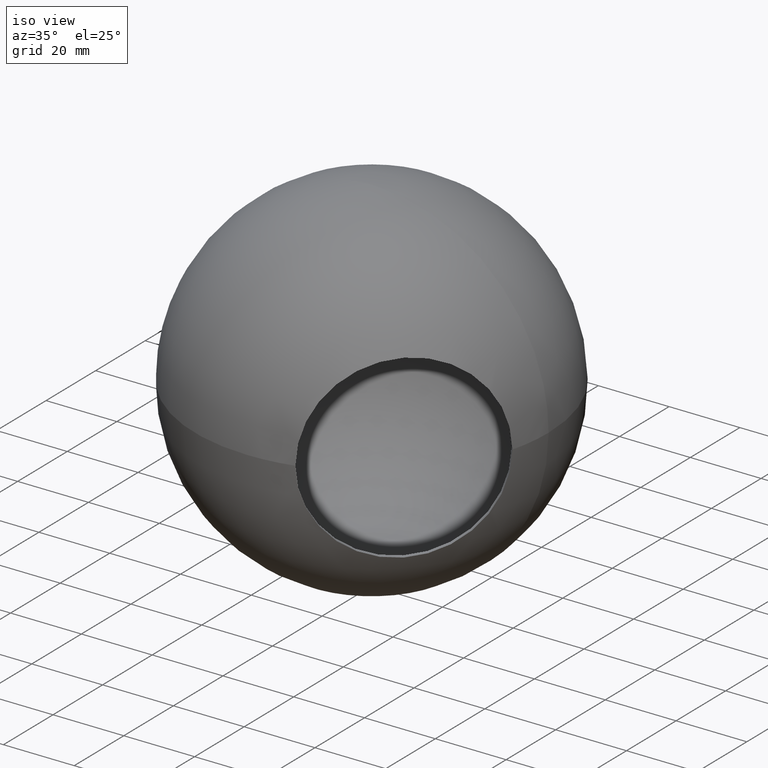
[diagram: clean part render]
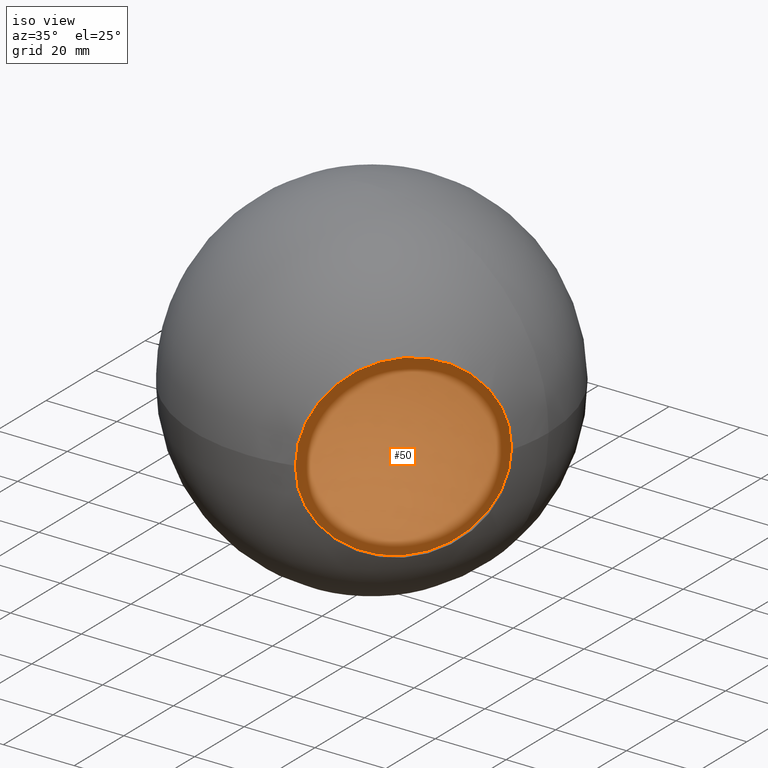
[diagram: same view with one face highlighted and labeled with its STEP entity id]
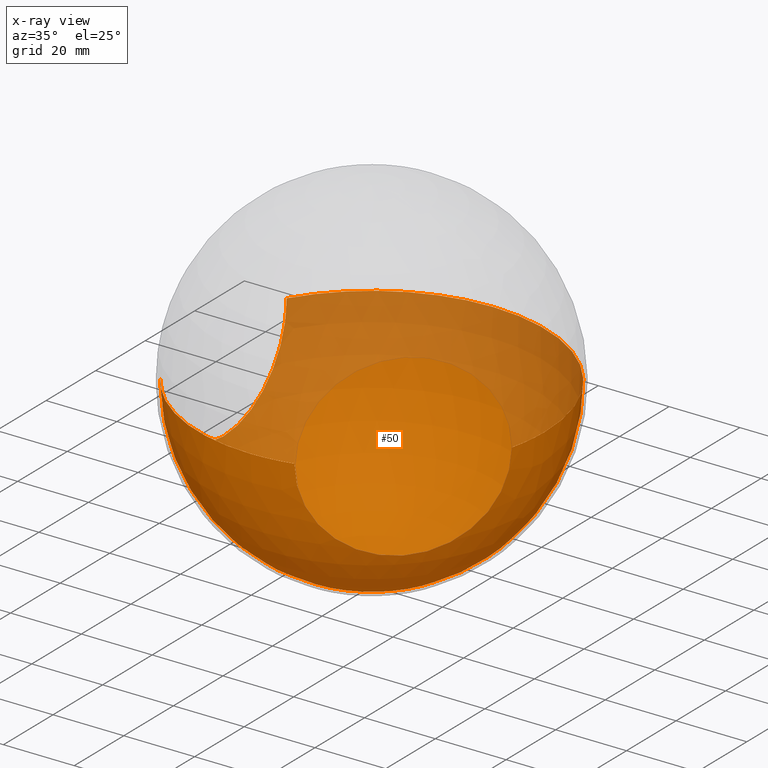
[diagram: x-ray of the same camera — body ghosted, the highlighted face saturated]
A machine part, iso view. The second image highlights one B-rep face of the part: STEP entity #50.
The next image is the same camera in x-ray: the body ghosted, the highlighted face saturated — about 34% of this face is hidden behind the body in this view.
In plain terms, the highlighted spherical surface has radius 49 mm.
Its self-contained STEP definition (entity closure, byte-faithful):
#7 = DIRECTION ( 'NONE',  ( 1.000000000000000000, 0.0000000000000000000, 0.0000000000000000000 ) ) ;
#13 = DIRECTION ( 'NONE',  ( 1.000000000000000000, 0.0000000000000000000, 0.0000000000000000000 ) ) ;
#15 = EDGE_CURVE ( 'NONE', #152, #25, #199, .T. ) ;
#25 = VERTEX_POINT ( 'NONE', #334 ) ;
#29 = EDGE_CURVE ( 'NONE', #114, #152, #51, .T. ) ;
#36 = ORIENTED_EDGE ( 'NONE', *, *, #29, .T. ) ;
#38 = EDGE_CURVE ( 'NONE', #61, #247, #56, .T. ) ;
#47 = AXIS2_PLACEMENT_3D ( 'NONE', #302, #236, #13 ) ;
#48 = CARTESIAN_POINT ( 'NONE',  ( -41.84196458102798700, 0.0000000000000000000, 0.0000000000000000000 ) ) ;
#50 = ADVANCED_FACE ( 'NONE', ( #128 ), #82, .F. ) ;
#51 = CIRCLE ( 'NONE', #316, 49.00000000000000000 ) ;
#56 = CIRCLE ( 'NONE', #291, 25.50000000000000000 ) ;
#59 = DIRECTION ( 'NONE',  ( 0.7071067811865514600, -0.7071067811865435800, -0.0000000000000000000 ) ) ;
#61 = VERTEX_POINT ( 'NONE', #99 ) ;
#62 = EDGE_CURVE ( 'NONE', #25, #332, #337, .T. ) ;
#82 = SPHERICAL_SURFACE ( 'NONE', #235, 49.00000000000000000 ) ;
#92 = CARTESIAN_POINT ( 'NONE',  ( 0.0000000000000000000, 0.0000000000000000000, 0.0000000000000000000 ) ) ;
#93 = DIRECTION ( 'NONE',  ( 1.224646799147353200E-016, 0.0000000000000000000, -1.000000000000000000 ) ) ;
#96 = CARTESIAN_POINT ( 'NONE',  ( -41.84196458102798700, 0.0000000000000000000, 0.0000000000000000000 ) ) ;
#99 = CARTESIAN_POINT ( 'NONE',  ( -41.84196458102798700, 3.122849337825750200E-015, -25.50000000000000000 ) ) ;
#102 = DIRECTION ( 'NONE',  ( 0.0000000000000000000, 0.0000000000000000000, -1.000000000000000000 ) ) ;
#108 = CIRCLE ( 'NONE', #264, 49.00000000000000000 ) ;
#111 = ORIENTED_EDGE ( 'NONE', *, *, #38, .F. ) ;
#114 = VERTEX_POINT ( 'NONE', #134 ) ;
#115 = EDGE_CURVE ( 'NONE', #114, #311, #108, .T. ) ;
#122 = DIRECTION ( 'NONE',  ( 0.0000000000000000000, 0.0000000000000000000, -1.000000000000000000 ) ) ;
#128 = FACE_OUTER_BOUND ( 'NONE', #149, .T. ) ;
#129 = DIRECTION ( 'NONE',  ( 1.000000000000000000, 0.0000000000000000000, 0.0000000000000000000 ) ) ;
#134 = CARTESIAN_POINT ( 'NONE',  ( 3.000384657911015500E-015, -49.00000000000000000, 0.0000000000000000000 ) ) ;
#135 = CARTESIAN_POINT ( 'NONE',  ( 0.0000000000000000000, 0.0000000000000000000, 0.0000000000000000000 ) ) ;
#144 = AXIS2_PLACEMENT_3D ( 'NONE', #96, #7, #122 ) ;
#149 = EDGE_LOOP ( 'NONE', ( #277, #36, #297, #309, #250, #111, #169 ) ) ;
#152 = VERTEX_POINT ( 'NONE', #271 ) ;
#164 = AXIS2_PLACEMENT_3D ( 'NONE', #92, #93, #176 ) ;
#169 = ORIENTED_EDGE ( 'NONE', *, *, #184, .F. ) ;
#176 = DIRECTION ( 'NONE',  ( -1.000000000000000000, 0.0000000000000000000, -1.224646799147353200E-016 ) ) ;
#183 = DIRECTION ( 'NONE',  ( 1.000000000000000000, 0.0000000000000000000, 0.0000000000000000000 ) ) ;
#184 = EDGE_CURVE ( 'NONE', #311, #61, #313, .T. ) ;
#192 = DIRECTION ( 'NONE',  ( 1.224646799147353200E-016, 0.0000000000000000000, -1.000000000000000000 ) ) ;
#194 = AXIS2_PLACEMENT_3D ( 'NONE', #303, #59, #314 ) ;
#197 = DIRECTION ( 'NONE',  ( -1.000000000000000000, 0.0000000000000000000, -1.224646799147353200E-016 ) ) ;
#199 = CIRCLE ( 'NONE', #194, 25.49999999999999600 ) ;
#231 = CARTESIAN_POINT ( 'NONE',  ( 3.000384657911015500E-015, 49.00000000000000000, 0.0000000000000000000 ) ) ;
#235 = AXIS2_PLACEMENT_3D ( 'NONE', #328, #273, #300 ) ;
#236 = DIRECTION ( 'NONE',  ( 0.0000000000000000000, 0.0000000000000000000, 1.000000000000000000 ) ) ;
#246 = CARTESIAN_POINT ( 'NONE',  ( -41.84196458102798700, -25.50000000000000000, -5.124162799419285100E-015 ) ) ;
#247 = VERTEX_POINT ( 'NONE', #322 ) ;
#250 = ORIENTED_EDGE ( 'NONE', *, *, #281, .F. ) ;
#264 = AXIS2_PLACEMENT_3D ( 'NONE', #135, #192, #197 ) ;
#271 = CARTESIAN_POINT ( 'NONE',  ( 11.55551397315553300, -47.61795981366911700, 0.0000000000000000000 ) ) ;
#273 = DIRECTION ( 'NONE',  ( 0.0000000000000000000, 0.0000000000000000000, -1.000000000000000000 ) ) ;
#277 = ORIENTED_EDGE ( 'NONE', *, *, #115, .F. ) ;
#280 = DIRECTION ( 'NONE',  ( 0.0000000000000000000, 0.0000000000000000000, 1.000000000000000000 ) ) ;
#281 = EDGE_CURVE ( 'NONE', #247, #332, #293, .T. ) ;
#291 = AXIS2_PLACEMENT_3D ( 'NONE', #48, #183, #102 ) ;
#293 = CIRCLE ( 'NONE', #164, 49.00000000000000000 ) ;
#297 = ORIENTED_EDGE ( 'NONE', *, *, #15, .T. ) ;
#300 = DIRECTION ( 'NONE',  ( 1.000000000000000000, 0.0000000000000000000, 0.0000000000000000000 ) ) ;
#302 = CARTESIAN_POINT ( 'NONE',  ( 0.0000000000000000000, 0.0000000000000000000, 0.0000000000000000000 ) ) ;
#303 = CARTESIAN_POINT ( 'NONE',  ( 29.58673689341239300, -29.58673689341206300, 0.0000000000000000000 ) ) ;
#309 = ORIENTED_EDGE ( 'NONE', *, *, #62, .T. ) ;
#311 = VERTEX_POINT ( 'NONE', #246 ) ;
#313 = CIRCLE ( 'NONE', #144, 25.50000000000000000 ) ;
#314 = DIRECTION ( 'NONE',  ( -0.7071067811865435800, -0.7071067811865513500, 0.0000000000000000000 ) ) ;
#316 = AXIS2_PLACEMENT_3D ( 'NONE', #326, #280, #129 ) ;
#322 = CARTESIAN_POINT ( 'NONE',  ( -41.84196458102798700, 25.50000000000000000, -5.124162799419285100E-015 ) ) ;
#326 = CARTESIAN_POINT ( 'NONE',  ( 0.0000000000000000000, 0.0000000000000000000, 0.0000000000000000000 ) ) ;
#328 = CARTESIAN_POINT ( 'NONE',  ( 0.0000000000000000000, 0.0000000000000000000, 0.0000000000000000000 ) ) ;
#332 = VERTEX_POINT ( 'NONE', #231 ) ;
#334 = CARTESIAN_POINT ( 'NONE',  ( 47.61795981366925900, -11.55551397315500100, 0.0000000000000000000 ) ) ;
#337 = CIRCLE ( 'NONE', #47, 49.00000000000000000 ) ;